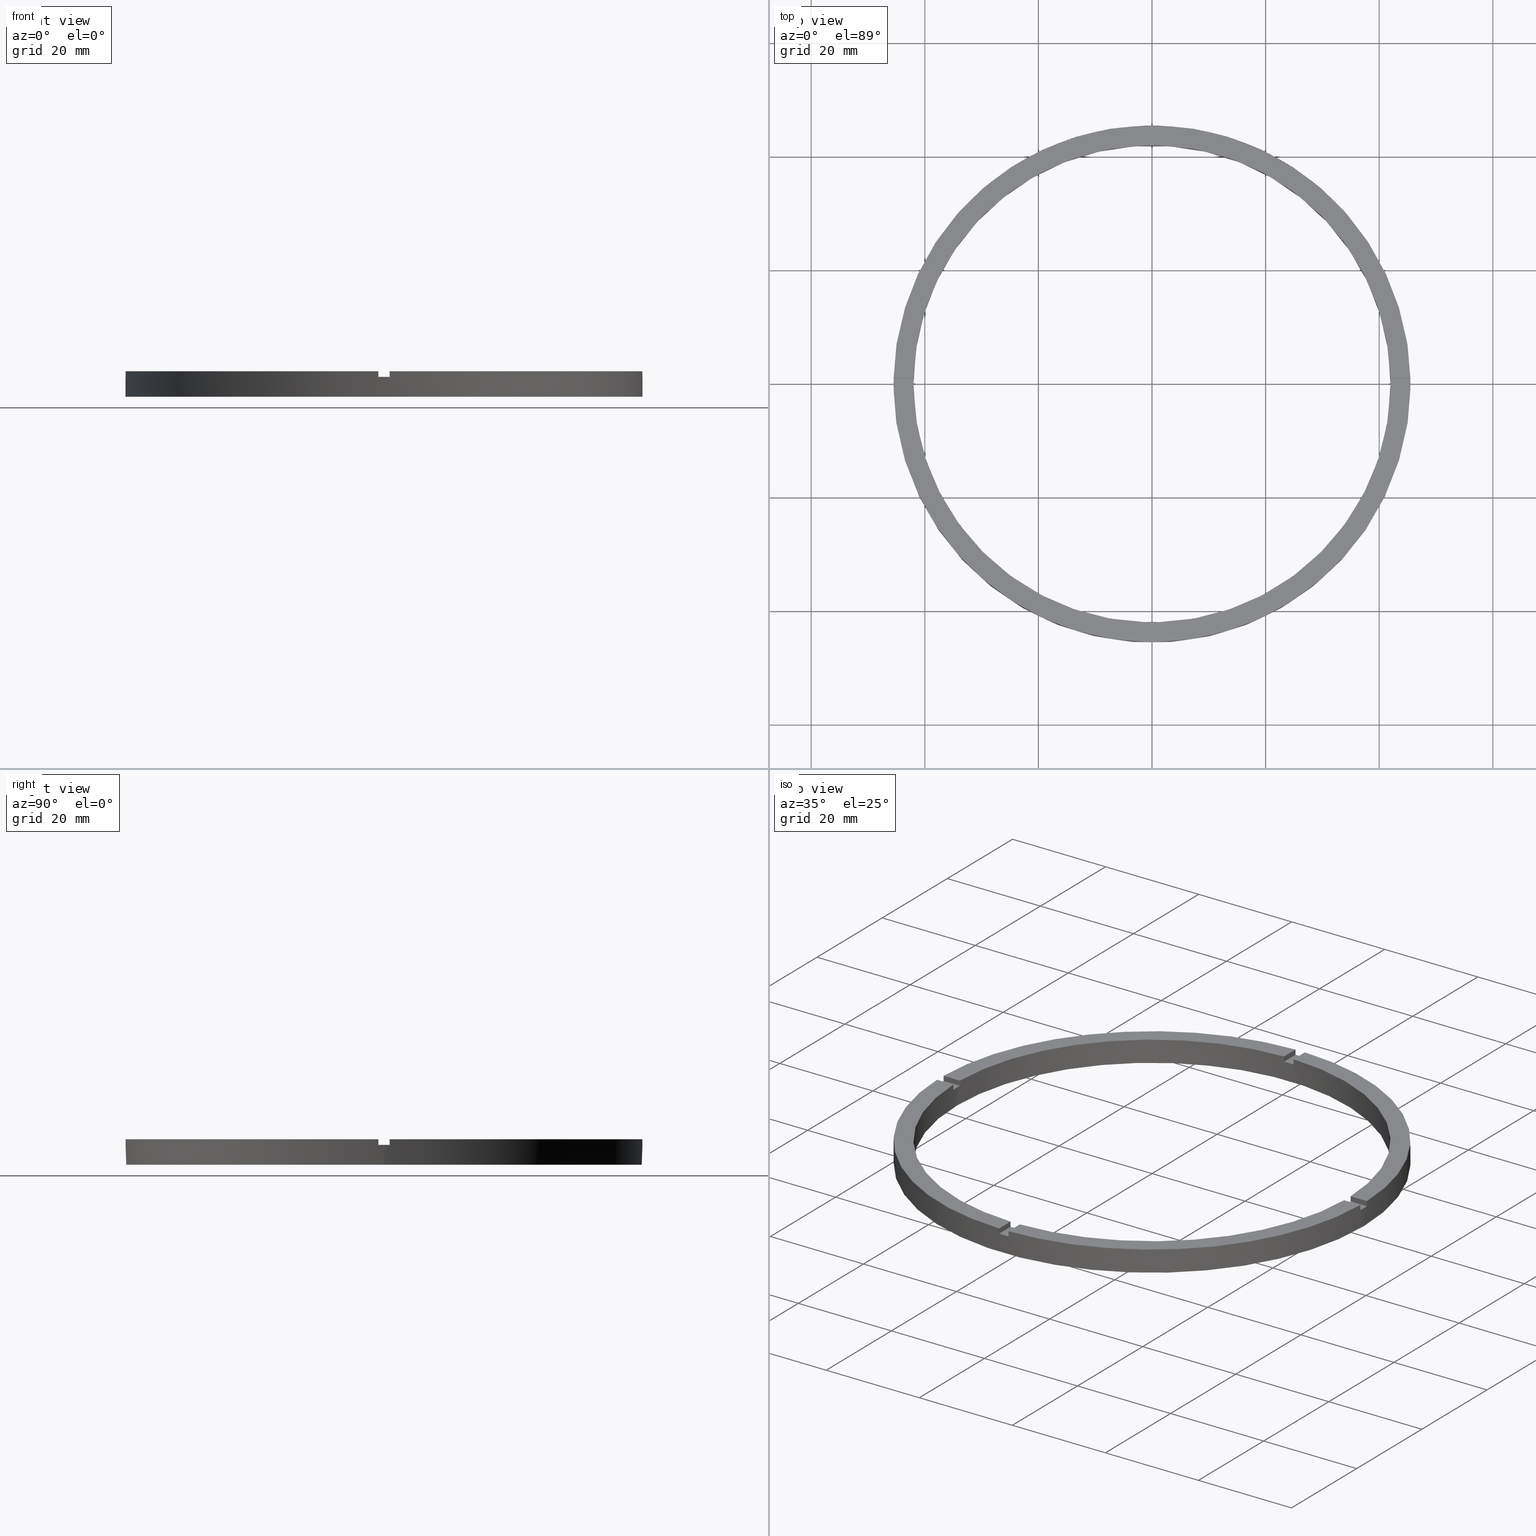
[diagram: canonical four-view strip — front | top / right | iso, engineering-drawing reading convention]
A machine part, canonical four-view strip (front | top / right | iso — engineering-drawing reading convention). The complete STEP part file that produces these views, byte-faithful:
ISO-10303-21;
HEADER;
FILE_DESCRIPTION (( 'STEP AP203' ),
    '1' );
FILE_NAME ('514187.step',
    '2024-12-26T02:46:04',
    ( 'MSI' ),
    ( '' ),
    'SwSTEP 2.0',
    'SolidWorks 2020',
    '' );
FILE_SCHEMA (( 'CONFIG_CONTROL_DESIGN' ));
ENDSEC;

DATA;
#1 = EDGE_LOOP ( 'NONE', ( #203, #472, #718, #734, #444, #501 ) ) ;
#2 = VERTEX_POINT ( 'NONE', #559 ) ;
#3 = ORIENTED_EDGE ( 'NONE', *, *, #781, .F. ) ;
#4 = CC_DESIGN_DATE_AND_TIME_ASSIGNMENT ( #29, #370, ( #113 ) ) ;
#5 = FACE_OUTER_BOUND ( 'NONE', #461, .T. ) ;
#6 = VECTOR ( 'NONE', #371, 1000.000000000000000 ) ;
#7 = VECTOR ( 'NONE', #259, 1000.000000000000000 ) ;
#8 = CARTESIAN_POINT ( 'NONE',  ( -1.000000000000026201, 45.48900966167541782, 4.500000000000000000 ) ) ;
#9 = DIRECTION ( 'NONE',  ( -0.000000000000000000, -0.000000000000000000, -1.000000000000000000 ) ) ;
#10 = AXIS2_PLACEMENT_3D ( 'NONE', #135, #129, #682 ) ;
#11 = EDGE_CURVE ( 'NONE', #235, #782, #503, .T. ) ;
#12 = EDGE_CURVE ( 'NONE', #732, #462, #509, .T. ) ;
#13 = APPROVAL_STATUS ( 'not_yet_approved' ) ;
#14 = CARTESIAN_POINT ( 'NONE',  ( 45.48900966167542492, 0.9999999999998439026, 4.500000000000000000 ) ) ;
#15 = EDGE_CURVE ( 'NONE', #162, #782, #495, .T. ) ;
#16 = DIRECTION ( 'NONE',  ( 1.000000000000000000, 0.000000000000000000, 0.000000000000000000 ) ) ;
#17 = CALENDAR_DATE ( 2024, 26, 12 ) ;
#18 = LOCAL_TIME ( 10, 46, 4.000000000000000000, #542 ) ;
#19 = CALENDAR_DATE ( 2024, 26, 12 ) ;
#20 = AXIS2_PLACEMENT_3D ( 'NONE', #435, #27, #140 ) ;
#21 = PLANE ( 'NONE',  #574 ) ;
#22 = CARTESIAN_POINT ( 'NONE',  ( 0.9999999999999737987, 45.48900966167541782, 3.499999999999999556 ) ) ;
#23 = CARTESIAN_POINT ( 'NONE',  ( -1.000000000000157874, -45.48900966167541782, 4.500000000000000000 ) ) ;
#24 = EDGE_CURVE ( 'NONE', #463, #775, #233, .T. ) ;
#25 = CALENDAR_DATE ( 2024, 26, 12 ) ;
#26 = CARTESIAN_POINT ( 'NONE',  ( 0.9999999999999737987, 41.98809355043403713, 4.500000000000000000 ) ) ;
#27 = DIRECTION ( 'NONE',  ( 0.000000000000000000, 0.000000000000000000, 1.000000000000000000 ) ) ;
#28 = APPROVAL_PERSON_ORGANIZATION ( #298, #275, #89 ) ;
#29 = DATE_AND_TIME ( #17, #555 ) ;
#30 = PERSON_AND_ORGANIZATION ( #148, #549 ) ;
#31 = PLANE ( 'NONE',  #144 ) ;
#32 = CARTESIAN_POINT ( 'NONE',  ( 0.9999999999998416822, -41.98809355043403713, 3.499999999999999556 ) ) ;
#33 = DIRECTION ( 'NONE',  ( -1.000000000000000000, 0.000000000000000000, 0.000000000000000000 ) ) ;
#34 = CARTESIAN_POINT ( 'NONE',  ( -45.48900966167541782, 0.9999999999999701350, 3.499999999999999556 ) ) ;
#35 = DIRECTION ( 'NONE',  ( 1.000000000000000000, 0.000000000000000000, 0.000000000000000000 ) ) ;
#36 =( NAMED_UNIT ( * ) SI_UNIT ( $, .STERADIAN. ) SOLID_ANGLE_UNIT ( ) );
#37 = DIRECTION ( 'NONE',  ( 0.000000000000000000, 0.000000000000000000, 1.000000000000000000 ) ) ;
#38 = DIRECTION ( 'NONE',  ( 1.000000000000000000, 0.000000000000000000, 0.000000000000000000 ) ) ;
#39 = PERSON_AND_ORGANIZATION_ROLE ( 'design_owner' ) ;
#40 = AXIS2_PLACEMENT_3D ( 'NONE', #247, #303, #606 ) ;
#41 = DIRECTION ( 'NONE',  ( -0.000000000000000000, -0.000000000000000000, -1.000000000000000000 ) ) ;
#42 = COORDINATED_UNIVERSAL_TIME_OFFSET ( 8, 0, .AHEAD. ) ;
#43 = LOCAL_TIME ( 10, 46, 4.000000000000000000, #563 ) ;
#44 = CARTESIAN_POINT ( 'NONE',  ( 0.000000000000000000, 0.000000000000000000, 3.499999999999999556 ) ) ;
#45 = EDGE_CURVE ( 'NONE', #732, #236, #766, .T. ) ;
#46 = PERSON_AND_ORGANIZATION ( #148, #549 ) ;
#47 = PERSON_AND_ORGANIZATION ( #148, #549 ) ;
#48 = EDGE_CURVE ( 'NONE', #252, #433, #239, .T. ) ;
#49 = DIRECTION ( 'NONE',  ( 0.000000000000000000, 0.000000000000000000, 1.000000000000000000 ) ) ;
#50 = EDGE_CURVE ( 'NONE', #210, #519, #241, .T. ) ;
#51 = DIRECTION ( 'NONE',  ( 1.301042606982605074E-16, -1.000000000000000000, 0.000000000000000000 ) ) ;
#52 = ADVANCED_FACE ( 'NONE', ( #5 ), #269, .F. ) ;
#53 = CARTESIAN_POINT ( 'NONE',  ( 0.000000000000000000, 0.000000000000000000, 3.499999999999999556 ) ) ;
#54 = LINE ( 'NONE', #339, #70 ) ;
#55 = DIRECTION ( 'NONE',  ( 0.000000000000000000, 0.000000000000000000, 1.000000000000000000 ) ) ;
#56 = AXIS2_PLACEMENT_3D ( 'NONE', #308, #610, #391 ) ;
#57 = AXIS2_PLACEMENT_3D ( 'NONE', #319, #280, #752 ) ;
#58 = DIRECTION ( 'NONE',  ( -0.000000000000000000, -0.000000000000000000, -1.000000000000000000 ) ) ;
#59 = CIRCLE ( 'NONE', #647, 42.00000000000000000 ) ;
#60 = CYLINDRICAL_SURFACE ( 'NONE', #414, 45.50000000000000000 ) ;
#61 = PRODUCT_RELATED_PRODUCT_CATEGORY ( 'detail', '', ( #595 ) ) ;
#62 = AXIS2_PLACEMENT_3D ( 'NONE', #580, #394, #593 ) ;
#63 = CARTESIAN_POINT ( 'NONE',  ( 45.50000000000000000, 5.572142936120457130E-15, 4.500000000000000000 ) ) ;
#64 = DIRECTION ( 'NONE',  ( 1.301042606982605074E-16, -1.000000000000000000, 0.000000000000000000 ) ) ;
#65 = APPROVAL_STATUS ( 'not_yet_approved' ) ;
#66 = EDGE_CURVE ( 'NONE', #440, #174, #263, .T. ) ;
#67 = CARTESIAN_POINT ( 'NONE',  ( 0.000000000000000000, 0.000000000000000000, 4.500000000000000000 ) ) ;
#68 = CARTESIAN_POINT ( 'NONE',  ( -1.000000000000159206, -35.50000000000017764, 4.500000000000000000 ) ) ;
#69 = LINE ( 'NONE', #155, #328 ) ;
#70 = VECTOR ( 'NONE', #353, 1000.000000000000000 ) ;
#71 = PLANE ( 'NONE',  #225 ) ;
#72 = AXIS2_PLACEMENT_3D ( 'NONE', #491, #485, #724 ) ;
#73 = DIRECTION ( 'NONE',  ( 0.000000000000000000, 0.000000000000000000, 1.000000000000000000 ) ) ;
#74 = DIRECTION ( 'NONE',  ( 0.000000000000000000, 0.000000000000000000, 1.000000000000000000 ) ) ;
#75 = FACE_OUTER_BOUND ( 'NONE', #763, .T. ) ;
#76 = EDGE_CURVE ( 'NONE', #783, #440, #526, .T. ) ;
#77 = VECTOR ( 'NONE', #502, 1000.000000000000000 ) ;
#78 = AXIS2_PLACEMENT_3D ( 'NONE', #415, #73, #504 ) ;
#79 = MANIFOLD_SOLID_BREP ( '�г�-����1', #494 ) ;
#80 = EDGE_CURVE ( 'NONE', #759, #739, #530, .T. ) ;
#81 = VECTOR ( 'NONE', #644, 1000.000000000000000 ) ;
#82 = CARTESIAN_POINT ( 'NONE',  ( 0.000000000000000000, 0.000000000000000000, 0.000000000000000000 ) ) ;
#83 = DIRECTION ( 'NONE',  ( 1.000000000000000000, 2.168404344971008621E-16, 0.000000000000000000 ) ) ;
#84 = CIRCLE ( 'NONE', #183, 42.00000000000000000 ) ;
#85 = CARTESIAN_POINT ( 'NONE',  ( 41.98809355043403713, 0.9999999999998436806, 4.500000000000000000 ) ) ;
#86 = AXIS2_PLACEMENT_3D ( 'NONE', #357, #120, #742 ) ;
#87 = CARTESIAN_POINT ( 'NONE',  ( 0.000000000000000000, 0.000000000000000000, 3.499999999999999556 ) ) ;
#88 = EDGE_CURVE ( 'NONE', #453, #713, #525, .T. ) ;
#89 = APPROVAL_ROLE ( '' ) ;
#90 = DIRECTION ( 'NONE',  ( 0.000000000000000000, 0.000000000000000000, 1.000000000000000000 ) ) ;
#91 = PLANE ( 'NONE',  #663 ) ;
#92 = LINE ( 'NONE', #237, #95 ) ;
#93 = DIRECTION ( 'NONE',  ( -1.000000000000000000, 0.000000000000000000, 0.000000000000000000 ) ) ;
#94 = FACE_OUTER_BOUND ( 'NONE', #202, .T. ) ;
#95 = VECTOR ( 'NONE', #159, 1000.000000000000000 ) ;
#96 = DIRECTION ( 'NONE',  ( 0.000000000000000000, 0.000000000000000000, 1.000000000000000000 ) ) ;
#97 = EDGE_CURVE ( 'NONE', #188, #470, #264, .T. ) ;
#98 = DIRECTION ( 'NONE',  ( 1.000000000000000000, 0.000000000000000000, 0.000000000000000000 ) ) ;
#99 = LINE ( 'NONE', #274, #629 ) ;
#100 = LINE ( 'NONE', #175, #608 ) ;
#101 = FACE_OUTER_BOUND ( 'NONE', #1, .T. ) ;
#102 = CARTESIAN_POINT ( 'NONE',  ( 0.000000000000000000, 0.000000000000000000, 0.000000000000000000 ) ) ;
#103 = LINE ( 'NONE', #421, #631 ) ;
#104 = CARTESIAN_POINT ( 'NONE',  ( 0.000000000000000000, 0.000000000000000000, 4.500000000000000000 ) ) ;
#105 = FACE_OUTER_BOUND ( 'NONE', #436, .T. ) ;
#106 = FACE_OUTER_BOUND ( 'NONE', #431, .T. ) ;
#107 = CIRCLE ( 'NONE', #381, 42.00000000000000000 ) ;
#108 = EDGE_CURVE ( 'NONE', #213, #759, #99, .T. ) ;
#109 = LINE ( 'NONE', #779, #643 ) ;
#110 = CIRCLE ( 'NONE', #40, 45.50000000000000000 ) ;
#111 = AXIS2_PLACEMENT_3D ( 'NONE', #754, #622, #16 ) ;
#112 = FACE_OUTER_BOUND ( 'NONE', #459, .T. ) ;
#113 = PRODUCT_DEFINITION ( 'δ֪', '', #445, #346 ) ;
#114 = LINE ( 'NONE', #349, #368 ) ;
#115 = EDGE_CURVE ( 'NONE', #783, #723, #100, .T. ) ;
#116 = LINE ( 'NONE', #222, #122 ) ;
#117 = CIRCLE ( 'NONE', #553, 45.50000000000000000 ) ;
#118 = LINE ( 'NONE', #529, #369 ) ;
#119 = CARTESIAN_POINT ( 'NONE',  ( -35.50000000000018474, -1.000000000000027978, 4.500000000000000000 ) ) ;
#120 = DIRECTION ( 'NONE',  ( 0.000000000000000000, 0.000000000000000000, 1.000000000000000000 ) ) ;
#121 = CC_DESIGN_APPROVAL ( #597, ( #445 ) ) ;
#122 = VECTOR ( 'NONE', #761, 1000.000000000000000 ) ;
#123 = DIRECTION ( 'NONE',  ( 0.000000000000000000, 0.000000000000000000, 1.000000000000000000 ) ) ;
#124 = CIRCLE ( 'NONE', #591, 42.00000000000000000 ) ;
#125 = DIRECTION ( 'NONE',  ( 1.000000000000000000, 0.000000000000000000, 0.000000000000000000 ) ) ;
#126 = CARTESIAN_POINT ( 'NONE',  ( 0.9999999999998421263, -45.48900966167542492, 3.499999999999999556 ) ) ;
#127 = FACE_OUTER_BOUND ( 'NONE', #450, .T. ) ;
#128 = DIRECTION ( 'NONE',  ( 0.000000000000000000, 0.000000000000000000, 1.000000000000000000 ) ) ;
#129 = DIRECTION ( 'NONE',  ( 0.000000000000000000, 0.000000000000000000, 1.000000000000000000 ) ) ;
#130 = LINE ( 'NONE', #448, #674 ) ;
#131 = DIRECTION ( 'NONE',  ( 0.000000000000000000, 0.000000000000000000, 1.000000000000000000 ) ) ;
#132 = CARTESIAN_POINT ( 'NONE',  ( -1.000000000000158318, -41.98809355043403002, 3.499999999999999556 ) ) ;
#133 = VECTOR ( 'NONE', #273, 1000.000000000000000 ) ;
#134 = CARTESIAN_POINT ( 'NONE',  ( -45.48900966167541782, 0.9999999999999701350, 4.500000000000000000 ) ) ;
#135 = CARTESIAN_POINT ( 'NONE',  ( 0.000000000000000000, 0.000000000000000000, 3.499999999999999556 ) ) ;
#136 = PLANE ( 'NONE',  #690 ) ;
#137 = DIRECTION ( 'NONE',  ( 1.000000000000000000, 0.000000000000000000, 0.000000000000000000 ) ) ;
#138 = EDGE_CURVE ( 'NONE', #470, #496, #334, .T. ) ;
#139 = DIRECTION ( 'NONE',  ( 1.000000000000000000, 0.000000000000000000, 0.000000000000000000 ) ) ;
#140 = DIRECTION ( 'NONE',  ( 1.000000000000000000, 0.000000000000000000, 0.000000000000000000 ) ) ;
#141 = ADVANCED_FACE ( 'NONE', ( #75 ), #136, .F. ) ;
#142 = CC_DESIGN_SECURITY_CLASSIFICATION ( #538, ( #445 ) ) ;
#143 = AXIS2_PLACEMENT_3D ( 'NONE', #728, #55, #305 ) ;
#144 = AXIS2_PLACEMENT_3D ( 'NONE', #689, #708, #767 ) ;
#145 = ADVANCED_FACE ( 'NONE', ( #352 ), #71, .T. ) ;
#146 = DIRECTION ( 'NONE',  ( -0.000000000000000000, -0.000000000000000000, -1.000000000000000000 ) ) ;
#147 = EDGE_CURVE ( 'NONE', #433, #470, #331, .T. ) ;
#148 = PERSON ( 'δָ��', 'δָ��', 'δָ��', ('δָ��'), ('δָ��'), ('δָ��') ) ;
#149 = CARTESIAN_POINT ( 'NONE',  ( 0.000000000000000000, 0.000000000000000000, 4.500000000000000000 ) ) ;
#150 = ORIENTED_EDGE ( 'NONE', *, *, #640, .T. ) ;
#151 = ORIENTED_EDGE ( 'NONE', *, *, #193, .T. ) ;
#152 = ORIENTED_EDGE ( 'NONE', *, *, #480, .T. ) ;
#153 = ORIENTED_EDGE ( 'NONE', *, *, #528, .T. ) ;
#154 = ORIENTED_EDGE ( 'NONE', *, *, #658, .F. ) ;
#155 = CARTESIAN_POINT ( 'NONE',  ( 45.48900966167541782, -1.000000000000156097, 4.500000000000000000 ) ) ;
#156 = ORIENTED_EDGE ( 'NONE', *, *, #681, .F. ) ;
#157 = EDGE_LOOP ( 'NONE', ( #507, #426, #184, #195, #714, #711, #176, #199, #468, #475, #152, #451 ) ) ;
#158 = EDGE_CURVE ( 'NONE', #747, #496, #628, .T. ) ;
#159 = DIRECTION ( 'NONE',  ( -1.301042606982605074E-16, 1.000000000000000000, -0.000000000000000000 ) ) ;
#160 = ORIENTED_EDGE ( 'NONE', *, *, #521, .F. ) ;
#161 = ORIENTED_EDGE ( 'NONE', *, *, #359, .F. ) ;
#162 = VERTEX_POINT ( 'NONE', #620 ) ;
#163 = ORIENTED_EDGE ( 'NONE', *, *, #640, .F. ) ;
#164 = VERTEX_POINT ( 'NONE', #374 ) ;
#165 = ORIENTED_EDGE ( 'NONE', *, *, #390, .F. ) ;
#166 = ORIENTED_EDGE ( 'NONE', *, *, #66, .T. ) ;
#167 = CARTESIAN_POINT ( 'NONE',  ( 0.000000000000000000, 0.000000000000000000, 3.499999999999999556 ) ) ;
#168 = ORIENTED_EDGE ( 'NONE', *, *, #243, .T. ) ;
#169 = CARTESIAN_POINT ( 'NONE',  ( 45.48900966167542492, 0.9999999999998439026, 3.499999999999999556 ) ) ;
#170 = ORIENTED_EDGE ( 'NONE', *, *, #88, .F. ) ;
#171 = VERTEX_POINT ( 'NONE', #684 ) ;
#172 = EDGE_LOOP ( 'NONE', ( #168, #471 ) ) ;
#173 = DIRECTION ( 'NONE',  ( 1.000000000000000000, 2.168404344971008621E-16, -0.000000000000000000 ) ) ;
#174 = VERTEX_POINT ( 'NONE', #23 ) ;
#175 = CARTESIAN_POINT ( 'NONE',  ( -1.000000000000158318, -41.98809355043403002, 4.500000000000000000 ) ) ;
#176 = ORIENTED_EDGE ( 'NONE', *, *, #545, .F. ) ;
#177 = ORIENTED_EDGE ( 'NONE', *, *, #781, .T. ) ;
#178 = ORIENTED_EDGE ( 'NONE', *, *, #270, .F. ) ;
#179 = CARTESIAN_POINT ( 'NONE',  ( -45.48900966167541782, -1.000000000000029976, 4.500000000000000000 ) ) ;
#180 = ORIENTED_EDGE ( 'NONE', *, *, #108, .T. ) ;
#181 = ORIENTED_EDGE ( 'NONE', *, *, #45, .F. ) ;
#182 = EDGE_LOOP ( 'NONE', ( #722, #441, #227, #207 ) ) ;
#183 = AXIS2_PLACEMENT_3D ( 'NONE', #167, #96, #536 ) ;
#184 = ORIENTED_EDGE ( 'NONE', *, *, #158, .F. ) ;
#185 = CARTESIAN_POINT ( 'NONE',  ( -1.000000000000159206, -35.50000000000017764, 3.499999999999999556 ) ) ;
#186 = ORIENTED_EDGE ( 'NONE', *, *, #540, .F. ) ;
#187 = AXIS2_PLACEMENT_3D ( 'NONE', #527, #582, #196 ) ;
#188 = VERTEX_POINT ( 'NONE', #429 ) ;
#189 = ORIENTED_EDGE ( 'NONE', *, *, #12, .T. ) ;
#190 = DIRECTION ( 'NONE',  ( 0.000000000000000000, 0.000000000000000000, 1.000000000000000000 ) ) ;
#191 = ORIENTED_EDGE ( 'NONE', *, *, #625, .T. ) ;
#192 = ORIENTED_EDGE ( 'NONE', *, *, #687, .F. ) ;
#193 = EDGE_CURVE ( 'NONE', #462, #723, #358, .T. ) ;
#194 = EDGE_LOOP ( 'NONE', ( #745, #733, #434, #197, #457, #3, #166, #163, #743, #248, #498, #738 ) ) ;
#195 = ORIENTED_EDGE ( 'NONE', *, *, #390, .T. ) ;
#196 = DIRECTION ( 'NONE',  ( 1.000000000000000000, 0.000000000000000000, -0.000000000000000000 ) ) ;
#197 = ORIENTED_EDGE ( 'NONE', *, *, #534, .F. ) ;
#198 = ORIENTED_EDGE ( 'NONE', *, *, #258, .T. ) ;
#199 = ORIENTED_EDGE ( 'NONE', *, *, #592, .T. ) ;
#200 = PLANE ( 'NONE',  #676 ) ;
#201 = ORIENTED_EDGE ( 'NONE', *, *, #76, .T. ) ;
#202 = EDGE_LOOP ( 'NONE', ( #731, #473, #744, #712, #500, #219 ) ) ;
#203 = ORIENTED_EDGE ( 'NONE', *, *, #48, .T. ) ;
#204 = ORIENTED_EDGE ( 'NONE', *, *, #138, .F. ) ;
#205 = ORIENTED_EDGE ( 'NONE', *, *, #80, .T. ) ;
#206 = CARTESIAN_POINT ( 'NONE',  ( -45.48900966167541782, -1.000000000000029976, 4.500000000000000000 ) ) ;
#207 = ORIENTED_EDGE ( 'NONE', *, *, #66, .F. ) ;
#208 = CC_DESIGN_PERSON_AND_ORGANIZATION_ASSIGNMENT ( #570, #419, ( #445 ) ) ;
#209 = ORIENTED_EDGE ( 'NONE', *, *, #565, .T. ) ;
#210 = VERTEX_POINT ( 'NONE', #221 ) ;
#211 = DIRECTION ( 'NONE',  ( 1.000000000000000000, 0.000000000000000000, 0.000000000000000000 ) ) ;
#212 = CARTESIAN_POINT ( 'NONE',  ( -45.50000000000000000, 0.000000000000000000, 4.500000000000000000 ) ) ;
#213 = VERTEX_POINT ( 'NONE', #287 ) ;
#214 = ORIENTED_EDGE ( 'NONE', *, *, #11, .F. ) ;
#215 = ORIENTED_EDGE ( 'NONE', *, *, #653, .F. ) ;
#216 = CARTESIAN_POINT ( 'NONE',  ( 35.49999999999999289, -1.000000000000156763, 3.499999999999999556 ) ) ;
#217 = ORIENTED_EDGE ( 'NONE', *, *, #230, .F. ) ;
#218 = DIRECTION ( 'NONE',  ( -0.000000000000000000, 0.000000000000000000, 1.000000000000000000 ) ) ;
#219 = ORIENTED_EDGE ( 'NONE', *, *, #423, .T. ) ;
#220 = VERTEX_POINT ( 'NONE', #409 ) ;
#221 = CARTESIAN_POINT ( 'NONE',  ( 0.9999999999999737987, 41.98809355043403713, 3.499999999999999556 ) ) ;
#222 = CARTESIAN_POINT ( 'NONE',  ( -1.000000000000026201, 41.98809355043403713, 4.500000000000000000 ) ) ;
#223 = CARTESIAN_POINT ( 'NONE',  ( 0.000000000000000000, 0.000000000000000000, 4.500000000000000000 ) ) ;
#224 = ORIENTED_EDGE ( 'NONE', *, *, #15, .T. ) ;
#225 = AXIS2_PLACEMENT_3D ( 'NONE', #67, #123, #535 ) ;
#226 = CARTESIAN_POINT ( 'NONE',  ( 0.000000000000000000, 0.000000000000000000, 4.500000000000000000 ) ) ;
#227 = ORIENTED_EDGE ( 'NONE', *, *, #467, .T. ) ;
#228 = ORIENTED_EDGE ( 'NONE', *, *, #592, .F. ) ;
#229 = ORIENTED_EDGE ( 'NONE', *, *, #24, .T. ) ;
#230 = EDGE_CURVE ( 'NONE', #236, #510, #103, .T. ) ;
#231 = ORIENTED_EDGE ( 'NONE', *, *, #625, .F. ) ;
#232 = DIRECTION ( 'NONE',  ( 0.000000000000000000, 0.000000000000000000, 1.000000000000000000 ) ) ;
#233 = CIRCLE ( 'NONE', #111, 42.00000000000000000 ) ;
#234 = CARTESIAN_POINT ( 'NONE',  ( -35.50000000000018474, 0.9999999999999720224, 3.499999999999999556 ) ) ;
#235 = VERTEX_POINT ( 'NONE', #126 ) ;
#236 = VERTEX_POINT ( 'NONE', #560 ) ;
#237 = CARTESIAN_POINT ( 'NONE',  ( 0.9999999999998409050, -35.50000000000017764, 4.500000000000000000 ) ) ;
#238 = EDGE_CURVE ( 'NONE', #447, #510, #343, .T. ) ;
#239 = CIRCLE ( 'NONE', #78, 45.50000000000000000 ) ;
#240 = ADVANCED_FACE ( 'NONE', ( #105 ), #91, .T. ) ;
#241 = LINE ( 'NONE', #26, #505 ) ;
#242 = VERTEX_POINT ( 'NONE', #490 ) ;
#243 = EDGE_CURVE ( 'NONE', #242, #721, #605, .T. ) ;
#244 = ORIENTED_EDGE ( 'NONE', *, *, #321, .F. ) ;
#245 = DIRECTION ( 'NONE',  ( 1.000000000000000000, 0.000000000000000000, 0.000000000000000000 ) ) ;
#246 = ORIENTED_EDGE ( 'NONE', *, *, #97, .F. ) ;
#247 = CARTESIAN_POINT ( 'NONE',  ( 0.000000000000000000, 0.000000000000000000, 4.500000000000000000 ) ) ;
#248 = ORIENTED_EDGE ( 'NONE', *, *, #516, .F. ) ;
#249 = EDGE_LOOP ( 'NONE', ( #698, #729, #192, #517 ) ) ;
#250 = VECTOR ( 'NONE', #173, 1000.000000000000000 ) ;
#251 = PLANE ( 'NONE',  #56 ) ;
#252 = VERTEX_POINT ( 'NONE', #604 ) ;
#253 = CARTESIAN_POINT ( 'NONE',  ( -41.98809355043403713, -1.000000000000029310, 4.500000000000000000 ) ) ;
#254 = CC_DESIGN_PERSON_AND_ORGANIZATION_ASSIGNMENT ( #30, #312, ( #113 ) ) ;
#255 = VERTEX_POINT ( 'NONE', #667 ) ;
#256 = ORIENTED_EDGE ( 'NONE', *, *, #749, .F. ) ;
#257 = ORIENTED_EDGE ( 'NONE', *, *, #279, .T. ) ;
#258 = EDGE_CURVE ( 'NONE', #778, #162, #92, .T. ) ;
#259 = DIRECTION ( 'NONE',  ( 0.000000000000000000, 0.000000000000000000, 1.000000000000000000 ) ) ;
#260 = ORIENTED_EDGE ( 'NONE', *, *, #681, .T. ) ;
#261 = EDGE_LOOP ( 'NONE', ( #455, #215 ) ) ;
#262 = CARTESIAN_POINT ( 'NONE',  ( 0.9999999999998416822, -41.98809355043403713, 4.500000000000000000 ) ) ;
#263 = LINE ( 'NONE', #379, #7 ) ;
#264 = LINE ( 'NONE', #14, #77 ) ;
#265 = ADVANCED_FACE ( 'NONE', ( #366 ), #251, .F. ) ;
#266 = VECTOR ( 'NONE', #617, 1000.000000000000000 ) ;
#267 = AXIS2_PLACEMENT_3D ( 'NONE', #223, #511, #624 ) ;
#268 = DIRECTION ( 'NONE',  ( 0.000000000000000000, 0.000000000000000000, 1.000000000000000000 ) ) ;
#269 = CYLINDRICAL_SURFACE ( 'NONE', #619, 42.00000000000000000 ) ;
#270 = EDGE_CURVE ( 'NONE', #255, #2, #603, .T. ) ;
#271 = CARTESIAN_POINT ( 'NONE',  ( 0.000000000000000000, 0.000000000000000000, 4.500000000000000000 ) ) ;
#272 = CARTESIAN_POINT ( 'NONE',  ( -42.00000000000000000, 0.000000000000000000, 4.500000000000000000 ) ) ;
#273 = DIRECTION ( 'NONE',  ( 0.000000000000000000, 1.000000000000000000, 0.000000000000000000 ) ) ;
#274 = CARTESIAN_POINT ( 'NONE',  ( -41.98809355043403713, 0.9999999999999708011, 4.500000000000000000 ) ) ;
#275 = APPROVAL ( #636, 'δָ��' ) ;
#276 = DIRECTION ( 'NONE',  ( 0.000000000000000000, 0.000000000000000000, 1.000000000000000000 ) ) ;
#277 = DIRECTION ( 'NONE',  ( -1.000000000000000000, 0.000000000000000000, 0.000000000000000000 ) ) ;
#278 = DIRECTION ( 'NONE',  ( 1.000000000000000000, 0.000000000000000000, 0.000000000000000000 ) ) ;
#279 = EDGE_CURVE ( 'NONE', #433, #465, #338, .T. ) ;
#280 = DIRECTION ( 'NONE',  ( 1.000000000000000000, 1.301042606982605074E-16, 0.000000000000000000 ) ) ;
#281 = MECHANICAL_CONTEXT ( 'NONE', #443, 'mechanical' ) ;
#282 = DIRECTION ( 'NONE',  ( 1.000000000000000000, 0.000000000000000000, -0.000000000000000000 ) ) ;
#283 = DATE_AND_TIME ( #25, #550 ) ;
#284 = CARTESIAN_POINT ( 'NONE',  ( -1.000000000000026201, 45.48900966167541782, 4.500000000000000000 ) ) ;
#285 = AXIS2_PLACEMENT_3D ( 'NONE', #694, #523, #211 ) ;
#286 = CARTESIAN_POINT ( 'NONE',  ( -1.000000000000026201, 35.50000000000000000, 3.499999999999999556 ) ) ;
#287 = CARTESIAN_POINT ( 'NONE',  ( -41.98809355043403713, 0.9999999999999708011, 3.499999999999999556 ) ) ;
#288 = PLANE ( 'NONE',  #350 ) ;
#289 = DIRECTION ( 'NONE',  ( -0.000000000000000000, 0.000000000000000000, 1.000000000000000000 ) ) ;
#290 = AXIS2_PLACEMENT_3D ( 'NONE', #590, #90, #137 ) ;
#291 = DATE_AND_TIME ( #19, #18 ) ;
#292 = DIRECTION ( 'NONE',  ( 0.000000000000000000, 0.000000000000000000, 1.000000000000000000 ) ) ;
#293 = EDGE_CURVE ( 'NONE', #213, #447, #84, .T. ) ;
#294 = PERSON_AND_ORGANIZATION ( #148, #549 ) ;
#295 = PLANE ( 'NONE',  #330 ) ;
#296 = DIRECTION ( 'NONE',  ( -1.000000000000000000, -1.301042606982605074E-16, 0.000000000000000000 ) ) ;
#297 = ADVANCED_FACE ( 'NONE', ( #360 ), #295, .F. ) ;
#298 = PERSON_AND_ORGANIZATION ( #148, #549 ) ;
#299 = CARTESIAN_POINT ( 'NONE',  ( -35.50000000000018474, -1.000000000000027978, 3.499999999999999556 ) ) ;
#300 = DIRECTION ( 'NONE',  ( 1.000000000000000000, 0.000000000000000000, 0.000000000000000000 ) ) ;
#301 = PERSON_AND_ORGANIZATION ( #148, #549 ) ;
#302 = CALENDAR_DATE ( 2024, 26, 12 ) ;
#303 = DIRECTION ( 'NONE',  ( 0.000000000000000000, 0.000000000000000000, 1.000000000000000000 ) ) ;
#304 = APPROVAL_DATE_TIME ( #575, #597 ) ;
#305 = DIRECTION ( 'NONE',  ( 1.000000000000000000, 0.000000000000000000, -0.000000000000000000 ) ) ;
#306 = CALENDAR_DATE ( 2024, 26, 12 ) ;
#307 = PERSON_AND_ORGANIZATION ( #148, #549 ) ;
#308 = CARTESIAN_POINT ( 'NONE',  ( 0.9999999999999737987, 35.50000000000000000, 3.499999999999999556 ) ) ;
#309 = APPROVAL_PERSON_ORGANIZATION ( #47, #380, #310 ) ;
#310 = APPROVAL_ROLE ( '' ) ;
#311 = VECTOR ( 'NONE', #347, 1000.000000000000000 ) ;
#312 = PERSON_AND_ORGANIZATION_ROLE ( 'creator' ) ;
#313 = DIRECTION ( 'NONE',  ( -0.000000000000000000, -0.000000000000000000, -1.000000000000000000 ) ) ;
#314 = LINE ( 'NONE', #68, #316 ) ;
#315 = DIRECTION ( 'NONE',  ( 1.000000000000000000, 0.000000000000000000, 0.000000000000000000 ) ) ;
#316 = VECTOR ( 'NONE', #64, 1000.000000000000000 ) ;
#317 = LINE ( 'NONE', #272, #585 ) ;
#318 = CARTESIAN_POINT ( 'NONE',  ( 0.9999999999999737987, 41.98809355043403713, 4.500000000000000000 ) ) ;
#319 = CARTESIAN_POINT ( 'NONE',  ( 0.9999999999998409050, -35.50000000000017764, 3.499999999999999556 ) ) ;
#320 = DIRECTION ( 'NONE',  ( -6.505213034913025371E-17, 1.000000000000000000, 0.000000000000000000 ) ) ;
#321 = EDGE_CURVE ( 'NONE', #777, #220, #633, .T. ) ;
#322 = DIRECTION ( 'NONE',  ( -0.000000000000000000, -0.000000000000000000, -1.000000000000000000 ) ) ;
#323 = APPLICATION_CONTEXT ( 'configuration controlled 3d designs of mechanical parts and assemblies' ) ;
#324 = EDGE_CURVE ( 'NONE', #717, #164, #354, .T. ) ;
#325 = CARTESIAN_POINT ( 'NONE',  ( 0.9999999999999737987, 35.50000000000000000, 3.499999999999999556 ) ) ;
#326 = DIRECTION ( 'NONE',  ( 0.000000000000000000, 0.000000000000000000, 1.000000000000000000 ) ) ;
#327 = PLANE ( 'NONE',  #187 ) ;
#328 = VECTOR ( 'NONE', #601, 1000.000000000000000 ) ;
#329 = CARTESIAN_POINT ( 'NONE',  ( 0.000000000000000000, 0.000000000000000000, 3.499999999999999556 ) ) ;
#330 = AXIS2_PLACEMENT_3D ( 'NONE', #299, #344, #83 ) ;
#331 = CIRCLE ( 'NONE', #474, 45.50000000000000000 ) ;
#332 = DIRECTION ( 'NONE',  ( 1.000000000000000000, 2.168404344971008621E-16, -0.000000000000000000 ) ) ;
#333 =( LENGTH_UNIT ( ) NAMED_UNIT ( * ) SI_UNIT ( .MILLI., .METRE. ) );
#334 = LINE ( 'NONE', #748, #600 ) ;
#335 = EDGE_CURVE ( 'NONE', #777, #739, #362, .T. ) ;
#336 = CARTESIAN_POINT ( 'NONE',  ( 0.000000000000000000, 0.000000000000000000, 3.499999999999999556 ) ) ;
#337 = DIRECTION ( 'NONE',  ( 1.000000000000000000, 0.000000000000000000, 0.000000000000000000 ) ) ;
#338 = LINE ( 'NONE', #63, #340 ) ;
#339 = CARTESIAN_POINT ( 'NONE',  ( 35.49999999999999289, -1.000000000000156763, 3.499999999999999556 ) ) ;
#340 = VECTOR ( 'NONE', #146, 1000.000000000000000 ) ;
#341 = CC_DESIGN_PERSON_AND_ORGANIZATION_ASSIGNMENT ( #46, #506, ( #445 ) ) ;
#342 = AXIS2_PLACEMENT_3D ( 'NONE', #710, #296, #51 ) ;
#343 = CIRCLE ( 'NONE', #562, 42.00000000000000000 ) ;
#344 = DIRECTION ( 'NONE',  ( 2.168404344971008621E-16, -1.000000000000000000, 0.000000000000000000 ) ) ;
#345 = PLANE ( 'NONE',  #598 ) ;
#346 = DESIGN_CONTEXT ( 'detailed design', #323, 'design' ) ;
#347 = DIRECTION ( 'NONE',  ( -1.000000000000000000, -2.168404344971008621E-16, 0.000000000000000000 ) ) ;
#348 = ADVANCED_FACE ( 'NONE', ( #101 ), #774, .T. ) ;
#349 = CARTESIAN_POINT ( 'NONE',  ( -41.98809355043403713, -1.000000000000029310, 4.500000000000000000 ) ) ;
#350 = AXIS2_PLACEMENT_3D ( 'NONE', #286, #93, #276 ) ;
#351 = ADVANCED_FACE ( 'NONE', ( #626 ), #638, .T. ) ;
#352 = FACE_OUTER_BOUND ( 'NONE', #416, .T. ) ;
#353 = DIRECTION ( 'NONE',  ( 1.000000000000000000, 6.505213034913025371E-17, 0.000000000000000000 ) ) ;
#354 = LINE ( 'NONE', #212, #81 ) ;
#355 = LINE ( 'NONE', #458, #654 ) ;
#356 = ADVANCED_FACE ( 'NONE', ( #94 ), #446, .T. ) ;
#357 = CARTESIAN_POINT ( 'NONE',  ( 0.000000000000000000, 0.000000000000000000, 4.500000000000000000 ) ) ;
#358 = CIRCLE ( 'NONE', #86, 42.00000000000000000 ) ;
#359 = EDGE_CURVE ( 'NONE', #783, #782, #363, .T. ) ;
#360 = FACE_OUTER_BOUND ( 'NONE', #477, .T. ) ;
#361 = FACE_OUTER_BOUND ( 'NONE', #157, .T. ) ;
#362 = CIRCLE ( 'NONE', #20, 45.50000000000000000 ) ;
#363 = CIRCLE ( 'NONE', #671, 42.00000000000000000 ) ;
#364 = CARTESIAN_POINT ( 'NONE',  ( -1.000000000000026201, 35.50000000000000000, 3.499999999999999556 ) ) ;
#365 = ADVANCED_FACE ( 'NONE', ( #637 ), #646, .T. ) ;
#366 = FACE_OUTER_BOUND ( 'NONE', #693, .T. ) ;
#367 = AXIS2_PLACEMENT_3D ( 'NONE', #102, #554, #661 ) ;
#368 = VECTOR ( 'NONE', #9, 1000.000000000000000 ) ;
#369 = VECTOR ( 'NONE', #583, 1000.000000000000000 ) ;
#370 = DATE_TIME_ROLE ( 'creation_date' ) ;
#371 = DIRECTION ( 'NONE',  ( -0.000000000000000000, -1.000000000000000000, -0.000000000000000000 ) ) ;
#372 = VECTOR ( 'NONE', #442, 1000.000000000000000 ) ;
#373 = FACE_BOUND ( 'NONE', #172, .T. ) ;
#374 = CARTESIAN_POINT ( 'NONE',  ( -45.50000000000000000, 0.000000000000000000, 0.000000000000000000 ) ) ;
#375 = FACE_OUTER_BOUND ( 'NONE', #452, .T. ) ;
#376 = VECTOR ( 'NONE', #58, 1000.000000000000000 ) ;
#377 = DIRECTION ( 'NONE',  ( 1.000000000000000000, 0.000000000000000000, 0.000000000000000000 ) ) ;
#378 = APPLICATION_PROTOCOL_DEFINITION ( 'international standard', 'config_control_design', 1994, #323 ) ;
#379 = CARTESIAN_POINT ( 'NONE',  ( -1.000000000000157874, -45.48900966167541782, 4.500000000000000000 ) ) ;
#380 = APPROVAL ( #13, 'δָ��' ) ;
#381 = AXIS2_PLACEMENT_3D ( 'NONE', #226, #292, #337 ) ;
#382 = PLANE ( 'NONE',  #57 ) ;
#383 = CARTESIAN_POINT ( 'NONE',  ( -45.50000000000000000, 0.000000000000000000, 3.499999999999999556 ) ) ;
#384 = DIRECTION ( 'NONE',  ( 0.000000000000000000, 0.000000000000000000, 1.000000000000000000 ) ) ;
#385 = CARTESIAN_POINT ( 'NONE',  ( 0.000000000000000000, 0.000000000000000000, 3.499999999999999556 ) ) ;
#386 = CARTESIAN_POINT ( 'NONE',  ( 0.000000000000000000, 0.000000000000000000, 4.500000000000000000 ) ) ;
#387 = DIRECTION ( 'NONE',  ( 0.000000000000000000, 0.000000000000000000, 1.000000000000000000 ) ) ;
#388 = DIRECTION ( 'NONE',  ( 6.505213034913025371E-17, -1.000000000000000000, 0.000000000000000000 ) ) ;
#389 = FACE_OUTER_BOUND ( 'NONE', #512, .T. ) ;
#390 = EDGE_CURVE ( 'NONE', #747, #519, #651, .T. ) ;
#391 = DIRECTION ( 'NONE',  ( 0.000000000000000000, 0.000000000000000000, -1.000000000000000000 ) ) ;
#392 = CC_DESIGN_APPROVAL ( #275, ( #113 ) ) ;
#393 = ADVANCED_FACE ( 'NONE', ( #656, #373 ), #686, .F. ) ;
#394 = DIRECTION ( 'NONE',  ( -0.000000000000000000, -0.000000000000000000, -1.000000000000000000 ) ) ;
#395 = EDGE_CURVE ( 'NONE', #462, #510, #114, .T. ) ;
#396 = CIRCLE ( 'NONE', #489, 45.50000000000000000 ) ;
#397 = LINE ( 'NONE', #325, #133 ) ;
#398 = DIRECTION ( 'NONE',  ( -0.000000000000000000, 0.000000000000000000, 1.000000000000000000 ) ) ;
#399 = ADVANCED_FACE ( 'NONE', ( #375 ), #60, .T. ) ;
#400 = CARTESIAN_POINT ( 'NONE',  ( 45.50000000000000000, 5.572142936120457130E-15, 3.499999999999999556 ) ) ;
#401 = EDGE_CURVE ( 'NONE', #252, #2, #69, .T. ) ;
#402 = DIRECTION ( 'NONE',  ( -0.000000000000000000, -0.000000000000000000, -1.000000000000000000 ) ) ;
#403 = DIRECTION ( 'NONE',  ( 0.000000000000000000, -0.000000000000000000, 1.000000000000000000 ) ) ;
#404 = EDGE_CURVE ( 'NONE', #463, #252, #54, .T. ) ;
#405 = DIRECTION ( 'NONE',  ( -0.000000000000000000, -0.000000000000000000, -1.000000000000000000 ) ) ;
#406 = FACE_OUTER_BOUND ( 'NONE', #741, .T. ) ;
#407 = LINE ( 'NONE', #757, #412 ) ;
#408 = AXIS2_PLACEMENT_3D ( 'NONE', #386, #41, #33 ) ;
#409 = CARTESIAN_POINT ( 'NONE',  ( -1.000000000000026201, 41.98809355043403713, 4.500000000000000000 ) ) ;
#410 = ADVANCED_FACE ( 'NONE', ( #594 ), #657, .F. ) ;
#411 = FACE_OUTER_BOUND ( 'NONE', #756, .T. ) ;
#412 = VECTOR ( 'NONE', #520, 1000.000000000000000 ) ;
#413 = CARTESIAN_POINT ( 'NONE',  ( -35.50000000000018474, 0.9999999999999720224, 4.500000000000000000 ) ) ;
#414 = AXIS2_PLACEMENT_3D ( 'NONE', #493, #405, #544 ) ;
#415 = CARTESIAN_POINT ( 'NONE',  ( 0.000000000000000000, 0.000000000000000000, 3.499999999999999556 ) ) ;
#416 = EDGE_LOOP ( 'NONE', ( #518, #706, #479, #150 ) ) ;
#417 = ADVANCED_BREP_SHAPE_REPRESENTATION ( '514187', ( #79, #285 ), #666 ) ;
#418 = ORIENTED_EDGE ( 'NONE', *, *, #15, .F. ) ;
#419 = PERSON_AND_ORGANIZATION_ROLE ( 'creator' ) ;
#420 = ORIENTED_EDGE ( 'NONE', *, *, #395, .F. ) ;
#421 = CARTESIAN_POINT ( 'NONE',  ( -35.50000000000018474, -1.000000000000027978, 3.499999999999999556 ) ) ;
#422 = ORIENTED_EDGE ( 'NONE', *, *, #776, .F. ) ;
#423 = EDGE_CURVE ( 'NONE', #213, #716, #599, .T. ) ;
#424 = DIRECTION ( 'NONE',  ( -0.000000000000000000, -0.000000000000000000, -1.000000000000000000 ) ) ;
#425 = ORIENTED_EDGE ( 'NONE', *, *, #551, .T. ) ;
#426 = ORIENTED_EDGE ( 'NONE', *, *, #557, .T. ) ;
#427 = CC_DESIGN_PERSON_AND_ORGANIZATION_ASSIGNMENT ( #301, #39, ( #595 ) ) ;
#428 = ORIENTED_EDGE ( 'NONE', *, *, #147, .F. ) ;
#429 = CARTESIAN_POINT ( 'NONE',  ( 45.48900966167542492, 0.9999999999998439026, 4.500000000000000000 ) ) ;
#430 = ORIENTED_EDGE ( 'NONE', *, *, #609, .T. ) ;
#431 = EDGE_LOOP ( 'NONE', ( #730, #191, #484, #697 ) ) ;
#432 = CARTESIAN_POINT ( 'NONE',  ( 0.000000000000000000, 0.000000000000000000, 0.000000000000000000 ) ) ;
#433 = VERTEX_POINT ( 'NONE', #400 ) ;
#434 = ORIENTED_EDGE ( 'NONE', *, *, #401, .T. ) ;
#435 = CARTESIAN_POINT ( 'NONE',  ( 0.000000000000000000, 0.000000000000000000, 4.500000000000000000 ) ) ;
#436 = EDGE_LOOP ( 'NONE', ( #177, #701, #161, #201 ) ) ;
#437 = ORIENTED_EDGE ( 'NONE', *, *, #492, .F. ) ;
#438 = CARTESIAN_POINT ( 'NONE',  ( -41.98809355043403713, 0.9999999999999708011, 4.500000000000000000 ) ) ;
#439 = ORIENTED_EDGE ( 'NONE', *, *, #324, .F. ) ;
#440 = VERTEX_POINT ( 'NONE', #481 ) ;
#441 = ORIENTED_EDGE ( 'NONE', *, *, #115, .T. ) ;
#442 = DIRECTION ( 'NONE',  ( 0.000000000000000000, 1.000000000000000000, 0.000000000000000000 ) ) ;
#443 = APPLICATION_CONTEXT ( 'configuration controlled 3d designs of mechanical parts and assemblies' ) ;
#444 = ORIENTED_EDGE ( 'NONE', *, *, #24, .F. ) ;
#445 = PRODUCT_DEFINITION_FORMATION_WITH_SPECIFIED_SOURCE ( '�κ�', '', #595, .NOT_KNOWN. ) ;
#446 = PLANE ( 'NONE',  #10 ) ;
#447 = VERTEX_POINT ( 'NONE', #499 ) ;
#448 = CARTESIAN_POINT ( 'NONE',  ( 35.49999999999999289, 0.9999999999998432365, 4.500000000000000000 ) ) ;
#449 = EDGE_LOOP ( 'NONE', ( #770, #165, #256, #260 ) ) ;
#450 = EDGE_LOOP ( 'NONE', ( #198, #224, #214, #422 ) ) ;
#451 = ORIENTED_EDGE ( 'NONE', *, *, #588, .F. ) ;
#452 = EDGE_LOOP ( 'NONE', ( #428, #257, #736, #439, #154, #514, #703, #153, #160, #425, #156, #709 ) ) ;
#453 = VERTEX_POINT ( 'NONE', #547 ) ;
#454 = ORIENTED_EDGE ( 'NONE', *, *, #158, .T. ) ;
#455 = ORIENTED_EDGE ( 'NONE', *, *, #584, .F. ) ;
#456 = ORIENTED_EDGE ( 'NONE', *, *, #492, .T. ) ;
#457 = ORIENTED_EDGE ( 'NONE', *, *, #776, .T. ) ;
#458 = CARTESIAN_POINT ( 'NONE',  ( -45.48900966167541782, 0.9999999999999701350, 4.500000000000000000 ) ) ;
#459 = EDGE_LOOP ( 'NONE', ( #466, #464, #170, #486 ) ) ;
#460 = AXIS2_PLACEMENT_3D ( 'NONE', #87, #384, #38 ) ;
#461 = EDGE_LOOP ( 'NONE', ( #229, #209, #726, #691, #727, #420, #151, #696, #760, #418, #456, #231 ) ) ;
#462 = VERTEX_POINT ( 'NONE', #253 ) ;
#463 = VERTEX_POINT ( 'NONE', #669 ) ;
#464 = ORIENTED_EDGE ( 'NONE', *, *, #545, .T. ) ;
#465 = VERTEX_POINT ( 'NONE', #740 ) ;
#466 = ORIENTED_EDGE ( 'NONE', *, *, #321, .T. ) ;
#467 = EDGE_CURVE ( 'NONE', #723, #174, #314, .T. ) ;
#468 = ORIENTED_EDGE ( 'NONE', *, *, #108, .F. ) ;
#469 = DIRECTION ( 'NONE',  ( 0.000000000000000000, 0.000000000000000000, 1.000000000000000000 ) ) ;
#470 = VERTEX_POINT ( 'NONE', #169 ) ;
#471 = ORIENTED_EDGE ( 'NONE', *, *, #588, .T. ) ;
#472 = ORIENTED_EDGE ( 'NONE', *, *, #147, .T. ) ;
#473 = ORIENTED_EDGE ( 'NONE', *, *, #516, .T. ) ;
#474 = AXIS2_PLACEMENT_3D ( 'NONE', #758, #680, #513 ) ;
#475 = ORIENTED_EDGE ( 'NONE', *, *, #293, .T. ) ;
#476 = CARTESIAN_POINT ( 'NONE',  ( 35.49999999999999289, -1.000000000000156763, 4.500000000000000000 ) ) ;
#477 = EDGE_LOOP ( 'NONE', ( #189, #482, #217, #181 ) ) ;
#478 = DIRECTION ( 'NONE',  ( 1.000000000000000000, 0.000000000000000000, -0.000000000000000000 ) ) ;
#479 = ORIENTED_EDGE ( 'NONE', *, *, #12, .F. ) ;
#480 = EDGE_CURVE ( 'NONE', #447, #242, #317, .T. ) ;
#481 = CARTESIAN_POINT ( 'NONE',  ( -1.000000000000157874, -45.48900966167541782, 3.499999999999999556 ) ) ;
#482 = ORIENTED_EDGE ( 'NONE', *, *, #395, .T. ) ;
#483 = ADVANCED_FACE ( 'NONE', ( #587 ), #21, .T. ) ;
#484 = ORIENTED_EDGE ( 'NONE', *, *, #270, .T. ) ;
#485 = DIRECTION ( 'NONE',  ( 0.000000000000000000, -0.000000000000000000, 1.000000000000000000 ) ) ;
#486 = ORIENTED_EDGE ( 'NONE', *, *, #528, .F. ) ;
#487 = DIRECTION ( 'NONE',  ( 0.000000000000000000, 0.000000000000000000, 1.000000000000000000 ) ) ;
#488 = AXIS2_PLACEMENT_3D ( 'NONE', #329, #578, #282 ) ;
#489 = AXIS2_PLACEMENT_3D ( 'NONE', #53, #232, #98 ) ;
#490 = CARTESIAN_POINT ( 'NONE',  ( -42.00000000000000000, 0.000000000000000000, 0.000000000000000000 ) ) ;
#491 = CARTESIAN_POINT ( 'NONE',  ( 0.000000000000000000, 0.000000000000000000, 3.499999999999999556 ) ) ;
#492 = EDGE_CURVE ( 'NONE', #162, #255, #59, .T. ) ;
#493 = CARTESIAN_POINT ( 'NONE',  ( 0.000000000000000000, 0.000000000000000000, 4.500000000000000000 ) ) ;
#494 = CLOSED_SHELL ( 'NONE', ( #52, #399, #664, #351, #780, #145, #393, #365, #616, #297, #652, #356, #707, #410, #240, #141, #539, #348, #552, #265, #483 ) ) ;
#495 = LINE ( 'NONE', #262, #769 ) ;
#496 = VERTEX_POINT ( 'NONE', #618 ) ;
#497 = ORIENTED_EDGE ( 'NONE', *, *, #50, .T. ) ;
#498 = ORIENTED_EDGE ( 'NONE', *, *, #324, .T. ) ;
#499 = CARTESIAN_POINT ( 'NONE',  ( -42.00000000000000000, 0.000000000000000000, 3.499999999999999556 ) ) ;
#500 = ORIENTED_EDGE ( 'NONE', *, *, #293, .F. ) ;
#501 = ORIENTED_EDGE ( 'NONE', *, *, #404, .T. ) ;
#502 = DIRECTION ( 'NONE',  ( -0.000000000000000000, -0.000000000000000000, -1.000000000000000000 ) ) ;
#503 = LINE ( 'NONE', #673, #764 ) ;
#504 = DIRECTION ( 'NONE',  ( 1.000000000000000000, 0.000000000000000000, 0.000000000000000000 ) ) ;
#505 = VECTOR ( 'NONE', #190, 1000.000000000000000 ) ;
#506 = PERSON_AND_ORGANIZATION_ROLE ( 'design_supplier' ) ;
#507 = ORIENTED_EDGE ( 'NONE', *, *, #565, .F. ) ;
#508 = DIRECTION ( 'NONE',  ( -1.000000000000000000, -2.168404344971008621E-16, 0.000000000000000000 ) ) ;
#509 = LINE ( 'NONE', #119, #250 ) ;
#510 = VERTEX_POINT ( 'NONE', #677 ) ;
#511 = DIRECTION ( 'NONE',  ( 0.000000000000000000, 0.000000000000000000, 1.000000000000000000 ) ) ;
#512 = EDGE_LOOP ( 'NONE', ( #719, #180, #205, #186 ) ) ;
#513 = DIRECTION ( 'NONE',  ( 1.000000000000000000, 0.000000000000000000, 0.000000000000000000 ) ) ;
#514 = ORIENTED_EDGE ( 'NONE', *, *, #540, .T. ) ;
#515 = CARTESIAN_POINT ( 'NONE',  ( 0.9999999999999737987, 35.50000000000000000, 4.500000000000000000 ) ) ;
#516 = EDGE_CURVE ( 'NONE', #717, #236, #639, .T. ) ;
#517 = ORIENTED_EDGE ( 'NONE', *, *, #737, .T. ) ;
#518 = ORIENTED_EDGE ( 'NONE', *, *, #467, .F. ) ;
#519 = VERTEX_POINT ( 'NONE', #318 ) ;
#520 = DIRECTION ( 'NONE',  ( -0.000000000000000000, -0.000000000000000000, -1.000000000000000000 ) ) ;
#521 = EDGE_CURVE ( 'NONE', #735, #453, #642, .T. ) ;
#522 = ORIENTED_EDGE ( 'NONE', *, *, #737, .F. ) ;
#523 = DIRECTION ( 'NONE',  ( 0.000000000000000000, 0.000000000000000000, 1.000000000000000000 ) ) ;
#524 = VECTOR ( 'NONE', #508, 1000.000000000000000 ) ;
#525 = LINE ( 'NONE', #364, #6 ) ;
#526 = LINE ( 'NONE', #185, #266 ) ;
#527 = CARTESIAN_POINT ( 'NONE',  ( 0.000000000000000000, 0.000000000000000000, 4.500000000000000000 ) ) ;
#528 = EDGE_CURVE ( 'NONE', #777, #453, #660, .T. ) ;
#529 = CARTESIAN_POINT ( 'NONE',  ( 0.9999999999999737987, 45.48900966167541782, 4.500000000000000000 ) ) ;
#530 = LINE ( 'NONE', #413, #524 ) ;
#531 = CARTESIAN_POINT ( 'NONE',  ( -1.000000000000026201, 35.50000000000000000, 4.500000000000000000 ) ) ;
#532 = AXIS2_PLACEMENT_3D ( 'NONE', #385, #289, #762 ) ;
#533 = APPROVAL_DATE_TIME ( #283, #380 ) ;
#534 = EDGE_CURVE ( 'NONE', #778, #2, #110, .T. ) ;
#535 = DIRECTION ( 'NONE',  ( 1.000000000000000000, 0.000000000000000000, -0.000000000000000000 ) ) ;
#536 = DIRECTION ( 'NONE',  ( 1.000000000000000000, 0.000000000000000000, 0.000000000000000000 ) ) ;
#537 = CARTESIAN_POINT ( 'NONE',  ( 0.000000000000000000, 0.000000000000000000, 4.500000000000000000 ) ) ;
#538 = SECURITY_CLASSIFICATION ( '', '', #566 ) ;
#539 = ADVANCED_FACE ( 'NONE', ( #106 ), #200, .F. ) ;
#540 = EDGE_CURVE ( 'NONE', #716, #739, #355, .T. ) ;
#541 = DIRECTION ( 'NONE',  ( 0.000000000000000000, 0.000000000000000000, 1.000000000000000000 ) ) ;
#542 = COORDINATED_UNIVERSAL_TIME_OFFSET ( 8, 0, .AHEAD. ) ;
#543 = SHAPE_DEFINITION_REPRESENTATION ( #602, #417 ) ;
#544 = DIRECTION ( 'NONE',  ( -1.000000000000000000, 0.000000000000000000, 0.000000000000000000 ) ) ;
#545 = EDGE_CURVE ( 'NONE', #220, #713, #116, .T. ) ;
#546 = COORDINATED_UNIVERSAL_TIME_OFFSET ( 8, 0, .AHEAD. ) ;
#547 = CARTESIAN_POINT ( 'NONE',  ( -1.000000000000026201, 45.48900966167541782, 3.499999999999999556 ) ) ;
#548 = COORDINATED_UNIVERSAL_TIME_OFFSET ( 8, 0, .AHEAD. ) ;
#549 = ORGANIZATION ( 'δָ��', 'δָ��', '' ) ;
#550 = LOCAL_TIME ( 10, 46, 4.000000000000000000, #548 ) ;
#551 = EDGE_CURVE ( 'NONE', #735, #171, #118, .T. ) ;
#552 = ADVANCED_FACE ( 'NONE', ( #112 ), #288, .F. ) ;
#553 = AXIS2_PLACEMENT_3D ( 'NONE', #537, #131, #377 ) ;
#554 = DIRECTION ( 'NONE',  ( 0.000000000000000000, 0.000000000000000000, 1.000000000000000000 ) ) ;
#555 = LOCAL_TIME ( 10, 46, 4.000000000000000000, #546 ) ;
#556 = APPROVAL_PERSON_ORGANIZATION ( #294, #597, #746 ) ;
#557 = EDGE_CURVE ( 'NONE', #775, #496, #649, .T. ) ;
#558 = PERSON_AND_ORGANIZATION_ROLE ( 'classification_officer' ) ;
#559 = CARTESIAN_POINT ( 'NONE',  ( 45.48900966167541782, -1.000000000000156097, 4.500000000000000000 ) ) ;
#560 = CARTESIAN_POINT ( 'NONE',  ( -45.48900966167541782, -1.000000000000029976, 3.499999999999999556 ) ) ;
#561 = APPROVAL_DATE_TIME ( #291, #275 ) ;
#562 = AXIS2_PLACEMENT_3D ( 'NONE', #44, #387, #648 ) ;
#563 = COORDINATED_UNIVERSAL_TIME_OFFSET ( 8, 0, .AHEAD. ) ;
#564 = DIRECTION ( 'NONE',  ( 1.000000000000000000, 0.000000000000000000, -0.000000000000000000 ) ) ;
#565 = EDGE_CURVE ( 'NONE', #775, #721, #109, .T. ) ;
#566 = SECURITY_CLASSIFICATION_LEVEL ( 'unclassified' ) ;
#567 = DIRECTION ( 'NONE',  ( -1.000000000000000000, -6.505213034913025371E-17, -0.000000000000000000 ) ) ;
#568 = DIRECTION ( 'NONE',  ( -0.000000000000000000, -0.000000000000000000, -1.000000000000000000 ) ) ;
#569 = LOCAL_TIME ( 10, 46, 4.000000000000000000, #42 ) ;
#570 = PERSON_AND_ORGANIZATION ( #148, #549 ) ;
#571 = DATE_AND_TIME ( #302, #569 ) ;
#572 = CARTESIAN_POINT ( 'NONE',  ( -1.000000000000026201, 41.98809355043403713, 3.499999999999999556 ) ) ;
#573 = DIRECTION ( 'NONE',  ( -0.000000000000000000, -0.000000000000000000, -1.000000000000000000 ) ) ;
#574 = AXIS2_PLACEMENT_3D ( 'NONE', #668, #615, #564 ) ;
#575 = DATE_AND_TIME ( #306, #43 ) ;
#576 = CARTESIAN_POINT ( 'NONE',  ( 0.000000000000000000, 0.000000000000000000, 0.000000000000000000 ) ) ;
#577 =( NAMED_UNIT ( * ) PLANE_ANGLE_UNIT ( ) SI_UNIT ( $, .RADIAN. ) );
#578 = DIRECTION ( 'NONE',  ( 0.000000000000000000, 0.000000000000000000, 1.000000000000000000 ) ) ;
#579 = CARTESIAN_POINT ( 'NONE',  ( 0.9999999999998421263, -45.48900966167542492, 4.500000000000000000 ) ) ;
#580 = CARTESIAN_POINT ( 'NONE',  ( 0.000000000000000000, 0.000000000000000000, 4.500000000000000000 ) ) ;
#581 = DIRECTION ( 'NONE',  ( -0.000000000000000000, -1.000000000000000000, -0.000000000000000000 ) ) ;
#582 = DIRECTION ( 'NONE',  ( 0.000000000000000000, 0.000000000000000000, 1.000000000000000000 ) ) ;
#583 = DIRECTION ( 'NONE',  ( 0.000000000000000000, 0.000000000000000000, 1.000000000000000000 ) ) ;
#584 = EDGE_CURVE ( 'NONE', #164, #465, #635, .T. ) ;
#585 = VECTOR ( 'NONE', #402, 1000.000000000000000 ) ;
#586 = CARTESIAN_POINT ( 'NONE',  ( 41.98809355043403713, 0.9999999999998436806, 4.500000000000000000 ) ) ;
#587 = FACE_OUTER_BOUND ( 'NONE', #249, .T. ) ;
#588 = EDGE_CURVE ( 'NONE', #721, #242, #630, .T. ) ;
#589 = DIRECTION ( 'NONE',  ( 1.000000000000000000, 0.000000000000000000, 0.000000000000000000 ) ) ;
#590 = CARTESIAN_POINT ( 'NONE',  ( 0.000000000000000000, 0.000000000000000000, 4.500000000000000000 ) ) ;
#591 = AXIS2_PLACEMENT_3D ( 'NONE', #596, #403, #715 ) ;
#592 = EDGE_CURVE ( 'NONE', #220, #759, #107, .T. ) ;
#593 = DIRECTION ( 'NONE',  ( -1.000000000000000000, 0.000000000000000000, 0.000000000000000000 ) ) ;
#594 = FACE_OUTER_BOUND ( 'NONE', #182, .T. ) ;
#595 = PRODUCT ( '514187', '514187', '', ( #281 ) ) ;
#596 = CARTESIAN_POINT ( 'NONE',  ( 0.000000000000000000, 0.000000000000000000, 3.499999999999999556 ) ) ;
#597 = APPROVAL ( #65, 'δָ��' ) ;
#598 = AXIS2_PLACEMENT_3D ( 'NONE', #149, #487, #478 ) ;
#599 = LINE ( 'NONE', #234, #311 ) ;
#600 = VECTOR ( 'NONE', #567, 1000.000000000000000 ) ;
#601 = DIRECTION ( 'NONE',  ( 0.000000000000000000, 0.000000000000000000, 1.000000000000000000 ) ) ;
#602 = PRODUCT_DEFINITION_SHAPE ( 'NONE', 'NONE',  #113 ) ;
#603 = LINE ( 'NONE', #476, #611 ) ;
#604 = CARTESIAN_POINT ( 'NONE',  ( 45.48900966167541782, -1.000000000000156097, 3.499999999999999556 ) ) ;
#605 = CIRCLE ( 'NONE', #367, 42.00000000000000000 ) ;
#606 = DIRECTION ( 'NONE',  ( 1.000000000000000000, 0.000000000000000000, 0.000000000000000000 ) ) ;
#607 = AXIS2_PLACEMENT_3D ( 'NONE', #576, #128, #589 ) ;
#608 = VECTOR ( 'NONE', #37, 1000.000000000000000 ) ;
#609 = EDGE_CURVE ( 'NONE', #519, #171, #632, .T. ) ;
#610 = DIRECTION ( 'NONE',  ( 1.000000000000000000, -0.000000000000000000, 0.000000000000000000 ) ) ;
#611 = VECTOR ( 'NONE', #705, 1000.000000000000000 ) ;
#612 = VECTOR ( 'NONE', #581, 1000.000000000000000 ) ;
#613 = DIRECTION ( 'NONE',  ( -1.301042606982605074E-16, 1.000000000000000000, -0.000000000000000000 ) ) ;
#614 = CARTESIAN_POINT ( 'NONE',  ( 35.49999999999999289, 0.9999999999998432365, 3.499999999999999556 ) ) ;
#615 = DIRECTION ( 'NONE',  ( 0.000000000000000000, -0.000000000000000000, 1.000000000000000000 ) ) ;
#616 = ADVANCED_FACE ( 'NONE', ( #361 ), #645, .F. ) ;
#617 = DIRECTION ( 'NONE',  ( 1.301042606982605074E-16, -1.000000000000000000, 0.000000000000000000 ) ) ;
#618 = CARTESIAN_POINT ( 'NONE',  ( 41.98809355043403713, 0.9999999999998436806, 3.499999999999999556 ) ) ;
#619 = AXIS2_PLACEMENT_3D ( 'NONE', #271, #424, #277 ) ;
#620 = CARTESIAN_POINT ( 'NONE',  ( 0.9999999999998416822, -41.98809355043403713, 4.500000000000000000 ) ) ;
#621 = AXIS2_PLACEMENT_3D ( 'NONE', #432, #49, #35 ) ;
#622 = DIRECTION ( 'NONE',  ( 0.000000000000000000, 0.000000000000000000, 1.000000000000000000 ) ) ;
#623 = VECTOR ( 'NONE', #573, 1000.000000000000000 ) ;
#624 = DIRECTION ( 'NONE',  ( 1.000000000000000000, 0.000000000000000000, -0.000000000000000000 ) ) ;
#625 = EDGE_CURVE ( 'NONE', #463, #255, #650, .T. ) ;
#626 = FACE_OUTER_BOUND ( 'NONE', #449, .T. ) ;
#627 = CARTESIAN_POINT ( 'NONE',  ( -1.000000000000158318, -41.98809355043403002, 4.500000000000000000 ) ) ;
#628 = LINE ( 'NONE', #586, #623 ) ;
#629 = VECTOR ( 'NONE', #675, 1000.000000000000000 ) ;
#630 = CIRCLE ( 'NONE', #755, 42.00000000000000000 ) ;
#631 = VECTOR ( 'NONE', #332, 1000.000000000000000 ) ;
#632 = LINE ( 'NONE', #515, #372 ) ;
#633 = LINE ( 'NONE', #531, #612 ) ;
#634 = CC_DESIGN_PERSON_AND_ORGANIZATION_ASSIGNMENT ( #307, #558, ( #538 ) ) ;
#635 = CIRCLE ( 'NONE', #607, 45.50000000000000000 ) ;
#636 = APPROVAL_STATUS ( 'not_yet_approved' ) ;
#637 = FACE_OUTER_BOUND ( 'NONE', #194, .T. ) ;
#638 = PLANE ( 'NONE',  #267 ) ;
#639 = CIRCLE ( 'NONE', #720, 45.50000000000000000 ) ;
#640 = EDGE_CURVE ( 'NONE', #732, #174, #117, .T. ) ;
#641 = DIRECTION ( 'NONE',  ( -1.000000000000000000, -6.505213034913025371E-17, -0.000000000000000000 ) ) ;
#642 = CIRCLE ( 'NONE', #72, 45.50000000000000000 ) ;
#643 = VECTOR ( 'NONE', #322, 1000.000000000000000 ) ;
#644 = DIRECTION ( 'NONE',  ( -0.000000000000000000, -0.000000000000000000, -1.000000000000000000 ) ) ;
#645 = CYLINDRICAL_SURFACE ( 'NONE', #62, 42.00000000000000000 ) ;
#646 = CYLINDRICAL_SURFACE ( 'NONE', #408, 45.50000000000000000 ) ;
#647 = AXIS2_PLACEMENT_3D ( 'NONE', #665, #268, #315 ) ;
#648 = DIRECTION ( 'NONE',  ( 1.000000000000000000, 0.000000000000000000, 0.000000000000000000 ) ) ;
#649 = CIRCLE ( 'NONE', #460, 42.00000000000000000 ) ;
#650 = LINE ( 'NONE', #685, #655 ) ;
#651 = CIRCLE ( 'NONE', #290, 42.00000000000000000 ) ;
#652 = ADVANCED_FACE ( 'NONE', ( #389 ), #31, .F. ) ;
#653 = EDGE_CURVE ( 'NONE', #465, #164, #662, .T. ) ;
#654 = VECTOR ( 'NONE', #699, 1000.000000000000000 ) ;
#655 = VECTOR ( 'NONE', #469, 1000.000000000000000 ) ;
#656 = FACE_OUTER_BOUND ( 'NONE', #261, .T. ) ;
#657 = PLANE ( 'NONE',  #342 ) ;
#658 = EDGE_CURVE ( 'NONE', #716, #717, #396, .T. ) ;
#659 = CARTESIAN_POINT ( 'NONE',  ( 0.000000000000000000, 0.000000000000000000, 3.499999999999999556 ) ) ;
#660 = LINE ( 'NONE', #8, #376 ) ;
#661 = DIRECTION ( 'NONE',  ( 1.000000000000000000, 0.000000000000000000, 0.000000000000000000 ) ) ;
#662 = CIRCLE ( 'NONE', #621, 45.50000000000000000 ) ;
#663 = AXIS2_PLACEMENT_3D ( 'NONE', #659, #398, #245 ) ;
#664 = ADVANCED_FACE ( 'NONE', ( #406 ), #345, .T. ) ;
#665 = CARTESIAN_POINT ( 'NONE',  ( 0.000000000000000000, 0.000000000000000000, 4.500000000000000000 ) ) ;
#666 =( GEOMETRIC_REPRESENTATION_CONTEXT ( 3 ) GLOBAL_UNCERTAINTY_ASSIGNED_CONTEXT ( ( #695 ) ) GLOBAL_UNIT_ASSIGNED_CONTEXT ( ( #333, #577, #36 ) ) REPRESENTATION_CONTEXT ( 'NONE', 'WORKASPACE' ) );
#667 = CARTESIAN_POINT ( 'NONE',  ( 41.98809355043403002, -1.000000000000156319, 4.500000000000000000 ) ) ;
#668 = CARTESIAN_POINT ( 'NONE',  ( 0.000000000000000000, 0.000000000000000000, 3.499999999999999556 ) ) ;
#669 = CARTESIAN_POINT ( 'NONE',  ( 41.98809355043403002, -1.000000000000156319, 3.499999999999999556 ) ) ;
#670 = CC_DESIGN_APPROVAL ( #380, ( #538 ) ) ;
#671 = AXIS2_PLACEMENT_3D ( 'NONE', #336, #218, #278 ) ;
#672 = CIRCLE ( 'NONE', #692, 45.50000000000000000 ) ;
#673 = CARTESIAN_POINT ( 'NONE',  ( 0.9999999999998409050, -35.50000000000017764, 3.499999999999999556 ) ) ;
#674 = VECTOR ( 'NONE', #641, 1000.000000000000000 ) ;
#675 = DIRECTION ( 'NONE',  ( 0.000000000000000000, 0.000000000000000000, 1.000000000000000000 ) ) ;
#676 = AXIS2_PLACEMENT_3D ( 'NONE', #216, #388, #772 ) ;
#677 = CARTESIAN_POINT ( 'NONE',  ( -41.98809355043403713, -1.000000000000029310, 3.499999999999999556 ) ) ;
#678 = DATE_TIME_ROLE ( 'classification_date' ) ;
#679 = CARTESIAN_POINT ( 'NONE',  ( 42.00000000000000000, 5.143516556418883322E-15, 0.000000000000000000 ) ) ;
#680 = DIRECTION ( 'NONE',  ( 0.000000000000000000, 0.000000000000000000, 1.000000000000000000 ) ) ;
#681 = EDGE_CURVE ( 'NONE', #188, #171, #672, .T. ) ;
#682 = DIRECTION ( 'NONE',  ( 1.000000000000000000, 0.000000000000000000, -0.000000000000000000 ) ) ;
#683 = CARTESIAN_POINT ( 'NONE',  ( 42.00000000000000000, 5.143516556418883322E-15, 3.499999999999999556 ) ) ;
#684 = CARTESIAN_POINT ( 'NONE',  ( 0.9999999999999737987, 45.48900966167541782, 4.500000000000000000 ) ) ;
#685 = CARTESIAN_POINT ( 'NONE',  ( 41.98809355043403002, -1.000000000000156319, 4.500000000000000000 ) ) ;
#686 = PLANE ( 'NONE',  #143 ) ;
#687 = EDGE_CURVE ( 'NONE', #210, #713, #124, .T. ) ;
#688 = CIRCLE ( 'NONE', #532, 45.50000000000000000 ) ;
#689 = CARTESIAN_POINT ( 'NONE',  ( -35.50000000000018474, 0.9999999999999720224, 3.499999999999999556 ) ) ;
#690 = AXIS2_PLACEMENT_3D ( 'NONE', #614, #320, #753 ) ;
#691 = ORIENTED_EDGE ( 'NONE', *, *, #480, .F. ) ;
#692 = AXIS2_PLACEMENT_3D ( 'NONE', #104, #541, #300 ) ;
#693 = EDGE_LOOP ( 'NONE', ( #522, #497, #430, #771 ) ) ;
#694 = CARTESIAN_POINT ( 'NONE',  ( 0.000000000000000000, 0.000000000000000000, 0.000000000000000000 ) ) ;
#695 = UNCERTAINTY_MEASURE_WITH_UNIT (LENGTH_MEASURE( 1.000000000000000082E-05 ), #333, 'distance_accuracy_value', 'NONE');
#696 = ORIENTED_EDGE ( 'NONE', *, *, #115, .F. ) ;
#697 = ORIENTED_EDGE ( 'NONE', *, *, #401, .F. ) ;
#698 = ORIENTED_EDGE ( 'NONE', *, *, #521, .T. ) ;
#699 = DIRECTION ( 'NONE',  ( 0.000000000000000000, 0.000000000000000000, 1.000000000000000000 ) ) ;
#700 = ORIENTED_EDGE ( 'NONE', *, *, #335, .T. ) ;
#701 = ORIENTED_EDGE ( 'NONE', *, *, #11, .T. ) ;
#702 = ORIENTED_EDGE ( 'NONE', *, *, #80, .F. ) ;
#703 = ORIENTED_EDGE ( 'NONE', *, *, #335, .F. ) ;
#704 = CC_DESIGN_DATE_AND_TIME_ASSIGNMENT ( #571, #678, ( #538 ) ) ;
#705 = DIRECTION ( 'NONE',  ( 1.000000000000000000, 6.505213034913025371E-17, 0.000000000000000000 ) ) ;
#706 = ORIENTED_EDGE ( 'NONE', *, *, #193, .F. ) ;
#707 = ADVANCED_FACE ( 'NONE', ( #127 ), #382, .F. ) ;
#708 = DIRECTION ( 'NONE',  ( -2.168404344971008621E-16, 1.000000000000000000, 0.000000000000000000 ) ) ;
#709 = ORIENTED_EDGE ( 'NONE', *, *, #97, .T. ) ;
#710 = CARTESIAN_POINT ( 'NONE',  ( -1.000000000000159206, -35.50000000000017764, 3.499999999999999556 ) ) ;
#711 = ORIENTED_EDGE ( 'NONE', *, *, #687, .T. ) ;
#712 = ORIENTED_EDGE ( 'NONE', *, *, #238, .F. ) ;
#713 = VERTEX_POINT ( 'NONE', #572 ) ;
#714 = ORIENTED_EDGE ( 'NONE', *, *, #50, .F. ) ;
#715 = DIRECTION ( 'NONE',  ( 1.000000000000000000, 0.000000000000000000, 0.000000000000000000 ) ) ;
#716 = VERTEX_POINT ( 'NONE', #34 ) ;
#717 = VERTEX_POINT ( 'NONE', #383 ) ;
#718 = ORIENTED_EDGE ( 'NONE', *, *, #138, .T. ) ;
#719 = ORIENTED_EDGE ( 'NONE', *, *, #423, .F. ) ;
#720 = AXIS2_PLACEMENT_3D ( 'NONE', #751, #74, #125 ) ;
#721 = VERTEX_POINT ( 'NONE', #679 ) ;
#722 = ORIENTED_EDGE ( 'NONE', *, *, #76, .F. ) ;
#723 = VERTEX_POINT ( 'NONE', #627 ) ;
#724 = DIRECTION ( 'NONE',  ( 1.000000000000000000, 0.000000000000000000, 0.000000000000000000 ) ) ;
#725 = ORIENTED_EDGE ( 'NONE', *, *, #534, .T. ) ;
#726 = ORIENTED_EDGE ( 'NONE', *, *, #243, .F. ) ;
#727 = ORIENTED_EDGE ( 'NONE', *, *, #238, .T. ) ;
#728 = CARTESIAN_POINT ( 'NONE',  ( 0.000000000000000000, 0.000000000000000000, 0.000000000000000000 ) ) ;
#729 = ORIENTED_EDGE ( 'NONE', *, *, #88, .T. ) ;
#730 = ORIENTED_EDGE ( 'NONE', *, *, #404, .F. ) ;
#731 = ORIENTED_EDGE ( 'NONE', *, *, #658, .T. ) ;
#732 = VERTEX_POINT ( 'NONE', #206 ) ;
#733 = ORIENTED_EDGE ( 'NONE', *, *, #48, .F. ) ;
#734 = ORIENTED_EDGE ( 'NONE', *, *, #557, .F. ) ;
#735 = VERTEX_POINT ( 'NONE', #22 ) ;
#736 = ORIENTED_EDGE ( 'NONE', *, *, #653, .T. ) ;
#737 = EDGE_CURVE ( 'NONE', #210, #735, #397, .T. ) ;
#738 = ORIENTED_EDGE ( 'NONE', *, *, #584, .T. ) ;
#739 = VERTEX_POINT ( 'NONE', #134 ) ;
#740 = CARTESIAN_POINT ( 'NONE',  ( 45.50000000000000000, 5.572142936120457130E-15, 0.000000000000000000 ) ) ;
#741 = EDGE_LOOP ( 'NONE', ( #244, #700, #702, #228 ) ) ;
#742 = DIRECTION ( 'NONE',  ( 1.000000000000000000, 0.000000000000000000, 0.000000000000000000 ) ) ;
#743 = ORIENTED_EDGE ( 'NONE', *, *, #45, .T. ) ;
#744 = ORIENTED_EDGE ( 'NONE', *, *, #230, .T. ) ;
#745 = ORIENTED_EDGE ( 'NONE', *, *, #279, .F. ) ;
#746 = APPROVAL_ROLE ( '' ) ;
#747 = VERTEX_POINT ( 'NONE', #85 ) ;
#748 = CARTESIAN_POINT ( 'NONE',  ( 35.49999999999999289, 0.9999999999998432365, 3.499999999999999556 ) ) ;
#749 = EDGE_CURVE ( 'NONE', #188, #747, #130, .T. ) ;
#750 = ORIENTED_EDGE ( 'NONE', *, *, #749, .T. ) ;
#751 = CARTESIAN_POINT ( 'NONE',  ( 0.000000000000000000, 0.000000000000000000, 3.499999999999999556 ) ) ;
#752 = DIRECTION ( 'NONE',  ( -1.301042606982605074E-16, 1.000000000000000000, 0.000000000000000000 ) ) ;
#753 = DIRECTION ( 'NONE',  ( -1.000000000000000000, -6.505213034913025371E-17, 0.000000000000000000 ) ) ;
#754 = CARTESIAN_POINT ( 'NONE',  ( 0.000000000000000000, 0.000000000000000000, 3.499999999999999556 ) ) ;
#755 = AXIS2_PLACEMENT_3D ( 'NONE', #82, #326, #139 ) ;
#756 = EDGE_LOOP ( 'NONE', ( #178, #437, #765, #725 ) ) ;
#757 = CARTESIAN_POINT ( 'NONE',  ( 0.9999999999998421263, -45.48900966167542492, 4.500000000000000000 ) ) ;
#758 = CARTESIAN_POINT ( 'NONE',  ( 0.000000000000000000, 0.000000000000000000, 3.499999999999999556 ) ) ;
#759 = VERTEX_POINT ( 'NONE', #438 ) ;
#760 = ORIENTED_EDGE ( 'NONE', *, *, #359, .T. ) ;
#761 = DIRECTION ( 'NONE',  ( -0.000000000000000000, -0.000000000000000000, -1.000000000000000000 ) ) ;
#762 = DIRECTION ( 'NONE',  ( 1.000000000000000000, 0.000000000000000000, 0.000000000000000000 ) ) ;
#763 = EDGE_LOOP ( 'NONE', ( #750, #454, #204, #246 ) ) ;
#764 = VECTOR ( 'NONE', #613, 1000.000000000000000 ) ;
#765 = ORIENTED_EDGE ( 'NONE', *, *, #258, .F. ) ;
#766 = LINE ( 'NONE', #179, #768 ) ;
#767 = DIRECTION ( 'NONE',  ( -1.000000000000000000, -2.168404344971008621E-16, 0.000000000000000000 ) ) ;
#768 = VECTOR ( 'NONE', #568, 1000.000000000000000 ) ;
#769 = VECTOR ( 'NONE', #313, 1000.000000000000000 ) ;
#770 = ORIENTED_EDGE ( 'NONE', *, *, #609, .F. ) ;
#771 = ORIENTED_EDGE ( 'NONE', *, *, #551, .F. ) ;
#772 = DIRECTION ( 'NONE',  ( 1.000000000000000000, 6.505213034913025371E-17, 0.000000000000000000 ) ) ;
#773 = APPLICATION_PROTOCOL_DEFINITION ( 'international standard', 'config_control_design', 1994, #443 ) ;
#774 = PLANE ( 'NONE',  #488 ) ;
#775 = VERTEX_POINT ( 'NONE', #683 ) ;
#776 = EDGE_CURVE ( 'NONE', #778, #235, #407, .T. ) ;
#777 = VERTEX_POINT ( 'NONE', #284 ) ;
#778 = VERTEX_POINT ( 'NONE', #579 ) ;
#779 = CARTESIAN_POINT ( 'NONE',  ( 42.00000000000000000, 5.143516556418883322E-15, 4.500000000000000000 ) ) ;
#780 = ADVANCED_FACE ( 'NONE', ( #411 ), #327, .T. ) ;
#781 = EDGE_CURVE ( 'NONE', #440, #235, #688, .T. ) ;
#782 = VERTEX_POINT ( 'NONE', #32 ) ;
#783 = VERTEX_POINT ( 'NONE', #132 ) ;
ENDSEC;
END-ISO-10303-21;
